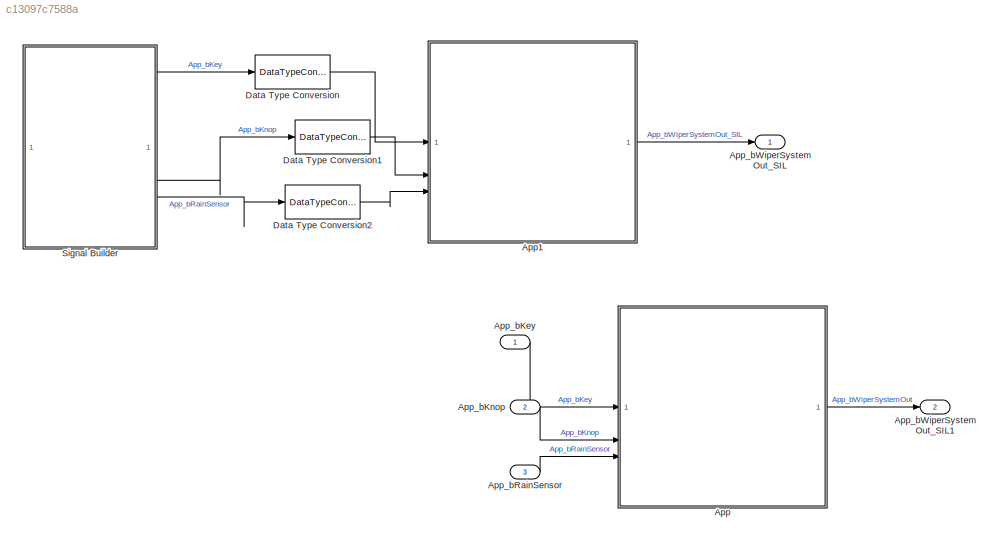
MODEL slx_c13097c7588a
KIND model
CONFIG AbsTol = auto
CONFIG EnableMultiTasking = off
CONFIG FixedStep = 1e-3
CONFIG MaxStep = auto
CONFIG MinStep = auto
CONFIG RelTol = 1e-3
CONFIG SampleTimeConstraint = Unconstrained
CONFIG SolverName = FixedStepDiscrete
CONFIG StartTime = 0.0
CONFIG StopTime = 50
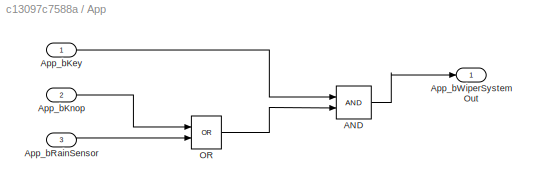
BLOCK [SubSystem] App
  TreatAsAtomicUnit = on
BLOCK [Logic] App/AND
  AllPortsSameDT = off
  OutDataTypeStr = boolean
BLOCK [Inport] App/App_bKey
BLOCK [Inport] App/App_bKnop
  Port = 2
BLOCK [Inport] App/App_bRainSensor
  Port = 3
BLOCK [Outport] App/App_bWiperSystemOut
BLOCK [Logic] App/OR
  AllPortsSameDT = off
  Operator = OR
  OutDataTypeStr = boolean
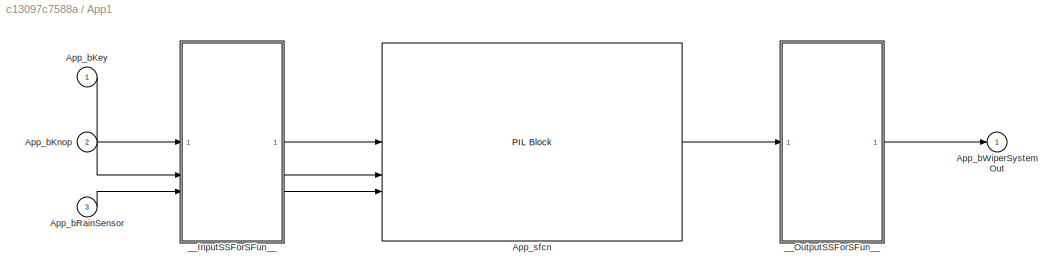
BLOCK [SubSystem] App1
  DialogController = pil_create_dialog
  LoadFcn = try\n   if ~strcmp(rtw.pil.getPILVersion, '9.13 (R2022b)_15')\n      set_param(gcb, 'DialogController', '');\n      set_param(gcb, 'DialogControllerArgs', '');\n   end\ncatch e\n      set_param(gcb, 'DialogController', '');\n      set_param(gcb, 'DialogControllerArgs', '');\nend
  Tag = __SL_testing_harness_stub_
BLOCK [Inport] App1/App_bKey
BLOCK [Inport] App1/App_bKnop
  Port = 2
BLOCK [Inport] App1/App_bRainSensor
  Port = 3
BLOCK [Outport] App1/App_bWiperSystemOut
BLOCK [Reference] App1/App_sfcn  REF=pil_lib/PIL Block
  SourceBlock = pil_lib/PIL Block
  SourceType = XILBlock
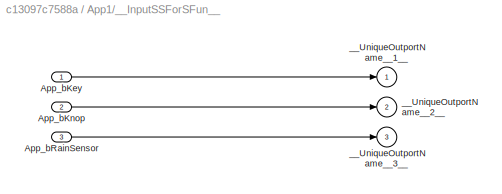
BLOCK [SubSystem] App1/__InputSSForSFun__
  PermitHierarchicalResolution = ExplicitOnly
BLOCK [Inport] App1/__InputSSForSFun__/App_bKey
BLOCK [Inport] App1/__InputSSForSFun__/App_bKnop
  Port = 2
BLOCK [Inport] App1/__InputSSForSFun__/App_bRainSensor
  Port = 3
BLOCK [Outport] App1/__InputSSForSFun__/__UniqueOutportName__1__
BLOCK [Outport] App1/__InputSSForSFun__/__UniqueOutportName__2__
  Port = 2
BLOCK [Outport] App1/__InputSSForSFun__/__UniqueOutportName__3__
  Port = 3
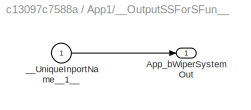
BLOCK [SubSystem] App1/__OutputSSForSFun__
  PermitHierarchicalResolution = ExplicitOnly
BLOCK [Outport] App1/__OutputSSForSFun__/App_bWiperSystemOut
BLOCK [Inport] App1/__OutputSSForSFun__/__UniqueInportName__1__
BLOCK [Inport] App_bKey
BLOCK [Inport] App_bKnop
  Port = 2
BLOCK [Inport] App_bRainSensor
  Port = 3
BLOCK [Outport] App_bWiperSystemOut_SIL
BLOCK [Outport] App_bWiperSystemOut_SIL1
  Port = 2
BLOCK [DataTypeConversion] Data Type Conversion
  OutDataTypeStr = boolean
  RndMeth = Floor
  SaturateOnIntegerOverflow = off
BLOCK [DataTypeConversion] Data Type Conversion1
  OutDataTypeStr = boolean
  RndMeth = Floor
  SaturateOnIntegerOverflow = off
BLOCK [DataTypeConversion] Data Type Conversion2
  OutDataTypeStr = boolean
  RndMeth = Floor
  SaturateOnIntegerOverflow = off
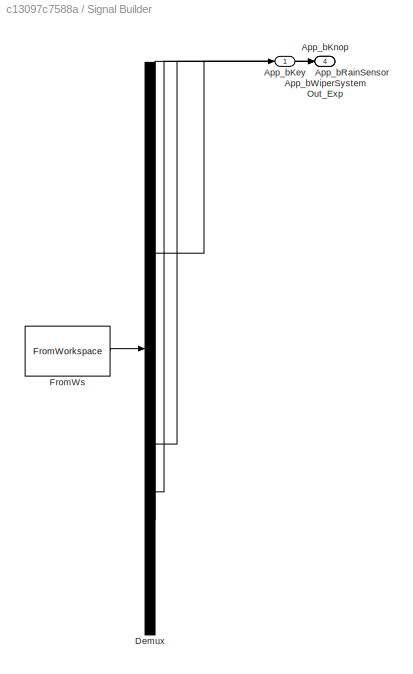
BLOCK [SubSystem] Signal Builder
  ClipboardFcn = sigbuilder_block('clipboard');
  CloseFcn = sigbuilder_block('close');
  ContinueFcn = sigbuilder_block('continue');
  CopyFcn = sigbuilder_block('copy');
  DeleteFcn = sigbuilder_block('delete');
  LoadFcn = sigbuilder_block('load');
  MaskHideContents = on
  ModelCloseFcn = sigbuilder_block('modelClose');
  NameChangeFcn = sigbuilder_block('namechange');
  OpenFcn = sigbuilder_block('open',[437.6 199.2 550.4 400 ]);
  PauseFcn = sigbuilder_block('pause');
  PreSaveFcn = sigbuilder_block('preSave');
  StartFcn = sigbuilder_block('start');
  StopFcn = sigbuilder_block('stop');
  Tag = STV Subsys
BLOCK [Outport] Signal Builder/App_bKey
  Tag = STV Outport
BLOCK [Outport] Signal Builder/App_bKnop
  Port = 2
  Tag = STV Outport
BLOCK [Outport] Signal Builder/App_bRainSensor
  Port = 3
  Tag = STV Outport
BLOCK [Outport] Signal Builder/App_bWiperSystemOut_Exp
  Port = 4
  Tag = STV Outport
BLOCK [Demux] Signal Builder/Demux
  DisplayOption = none
  Tag = STV Demux
BLOCK [FromWorkspace] Signal Builder/FromWs
  Tag = STV FromWs
  VariableName = tuvar
LINE App/AND:1 -> App/App_bWiperSystemOut:1
LINE App/App_bKey:1 -> App/AND:1
LINE App/App_bKnop:1 -> App/OR:1
LINE App/App_bRainSensor:1 -> App/OR:2
LINE App/OR:1 -> App/AND:2
LINE App1:1 -> App_bWiperSystemOut_SIL:1
LINE App:1 -> App_bWiperSystemOut_SIL1:1
LINE App_bKey:1 -> App:1
LINE App_bKnop:1 -> App:2
LINE App_bRainSensor:1 -> App:3
LINE Data Type Conversion1:1 -> App1:2
LINE Data Type Conversion2:1 -> App1:3
LINE Data Type Conversion:1 -> App1:1
LINE Signal Builder:1 -> Data Type Conversion:1
LINE Signal Builder:2 -> Data Type Conversion1:1
LINE Signal Builder:3 -> Data Type Conversion2:1
